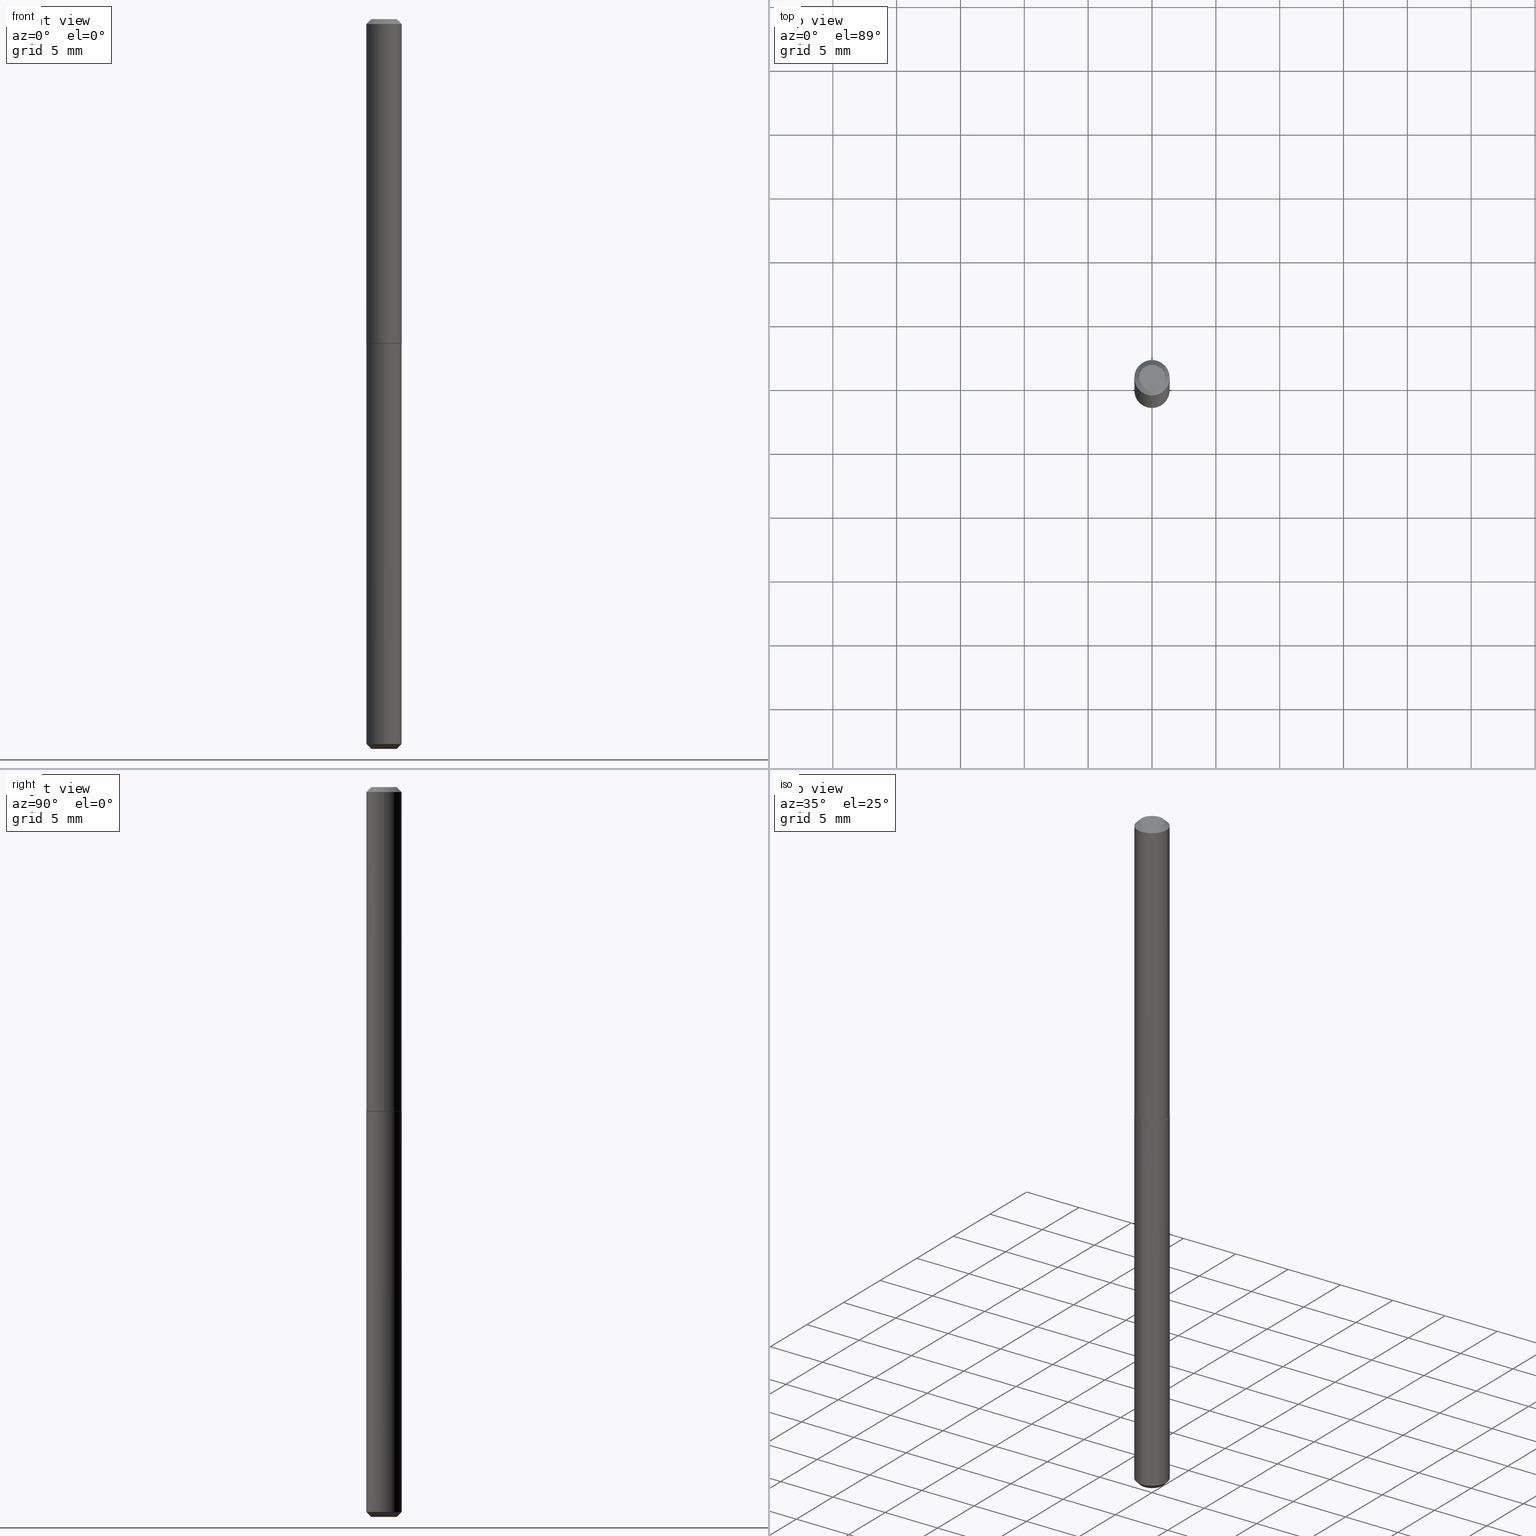
[diagram: canonical four-view strip — front | top / right | iso, engineering-drawing reading convention]
A machine part, canonical four-view strip (front | top / right | iso — engineering-drawing reading convention). The complete STEP part file that produces these views, byte-faithful:
ISO-10303-21;
HEADER;
FILE_DESCRIPTION (( 'STEP AP203' ),
    '1' );
FILE_NAME ('70007.STEP',
    '2024-04-19T13:35:06',
    ( '' ),
    ( '' ),
    'SwSTEP 2.0',
    'SolidWorks 2023',
    '' );
FILE_SCHEMA (( 'CONFIG_CONTROL_DESIGN' ));
ENDSEC;

DATA;
#1 = LINE ( 'NONE', #253, #172 ) ;
#2 = DIRECTION ( 'NONE',  ( -2.445620426770845950E-29, 3.491264209534702117E-15, 1.000000000000000000 ) ) ;
#3 = UNCERTAINTY_MEASURE_WITH_UNIT (LENGTH_MEASURE( 1.000000000000000082E-05 ), #237, 'distance_accuracy_value', 'NONE');
#4 = DIRECTION ( 'NONE',  ( 1.000000000000000000, -6.982962677686269866E-15, 0.000000000000000000 ) ) ;
#5 = MANIFOLD_SOLID_BREP ( 'Body-Move/Copy2[1]', #227 ) ;
#6 = CARTESIAN_POINT ( 'NONE',  ( 0.05420000000000026880, -3.869957915973742939E-15, -1.000000000000000000 ) ) ;
#7 = PLANE ( 'NONE',  #334 ) ;
#8 = CC_DESIGN_PERSON_AND_ORGANIZATION_ASSIGNMENT ( #57, #216, ( #10 ) ) ;
#9 = CARTESIAN_POINT ( 'NONE',  ( 0.000000000000000000, 0.000000000000000000, 0.000000000000000000 ) ) ;
#10 = PRODUCT_DEFINITION_FORMATION_WITH_SPECIFIED_SOURCE ( 'ANY', '', #404, .NOT_KNOWN. ) ;
#11 = DIRECTION ( 'NONE',  ( -2.445468806185136597E-29, 3.491481338843145583E-15, 1.000000000000000000 ) ) ;
#12 = ORIENTED_EDGE ( 'NONE', *, *, #146, .T. ) ;
#13 = CC_DESIGN_DATE_AND_TIME_ASSIGNMENT ( #409, #383, ( #203 ) ) ;
#14 = DIRECTION ( 'NONE',  ( -2.438088387897960049E-29, 3.491481338843145188E-15, 1.000000000000000000 ) ) ;
#15 = CARTESIAN_POINT ( 'NONE',  ( -3.819680584693835163E-16, -0.05470000000000771467, -2.234999999999999876 ) ) ;
#16 = CIRCLE ( 'NONE', #197, 0.05420000000000026880 ) ;
#17 = EDGE_CURVE ( 'NONE', #305, #117, #34, .T. ) ;
#18 = EDGE_CURVE ( 'NONE', #411, #371, #49, .T. ) ;
#19 = EDGE_CURVE ( 'NONE', #336, #119, #195, .T. ) ;
#20 = PERSON_AND_ORGANIZATION_ROLE ( 'design_owner' ) ;
#21 = ORIENTED_EDGE ( 'NONE', *, *, #398, .F. ) ;
#22 = VECTOR ( 'NONE', #109, 39.37007874015748143 ) ;
#23 = ORIENTED_EDGE ( 'NONE', *, *, #80, .F. ) ;
#24 = APPROVAL_PERSON_ORGANIZATION ( #25, #162, #277 ) ;
#25 = PERSON_AND_ORGANIZATION ( #35, #38 ) ;
#26 = ORIENTED_EDGE ( 'NONE', *, *, #31, .T. ) ;
#27 = APPROVAL_DATE_TIME ( #310, #162 ) ;
#28 = DATE_TIME_ROLE ( 'creation_date' ) ;
#29 = FACE_OUTER_BOUND ( 'NONE', #88, .T. ) ;
#30 = DIRECTION ( 'NONE',  ( -6.982962677686265922E-15, -1.000000000000000000, 4.994237648380736877E-15 ) ) ;
#31 = EDGE_CURVE ( 'NONE', #411, #275, #324, .T. ) ;
#32 = CARTESIAN_POINT ( 'NONE',  ( 2.445468806185136597E-29, -3.491481338843145583E-15, -1.000000000000000000 ) ) ;
#33 = ADVANCED_FACE ( 'NONE', ( #163 ), #321, .F. ) ;
#34 = LINE ( 'NONE', #220, #181 ) ;
#35 = PERSON ( 'UNSPECIFIED', 'UNSPECIFIED', 'UNSPECIFIED', ('UNSPECIFIED'), ('UNSPECIFIED'), ('UNSPECIFIED') ) ;
#36 = CARTESIAN_POINT ( 'NONE',  ( 2.445468806185136597E-29, -3.491481338843145583E-15, -1.000000000000000000 ) ) ;
#37 = VECTOR ( 'NONE', #2, 39.37007874015748143 ) ;
#38 = ORGANIZATION ( 'UNSPECIFIED', 'UNSPECIFIED', '' ) ;
#39 = EDGE_CURVE ( 'NONE', #305, #56, #207, .T. ) ;
#40 = CARTESIAN_POINT ( 'NONE',  ( -3.819680584693840587E-16, -0.05470000000000780488, -2.234999999999999876 ) ) ;
#41 = DIRECTION ( 'NONE',  ( -6.982962677686265922E-15, -1.000000000000000000, 2.497118824190368439E-15 ) ) ;
#42 = FACE_OUTER_BOUND ( 'NONE', #375, .T. ) ;
#43 = EDGE_LOOP ( 'NONE', ( #85, #211, #186, #179 ) ) ;
#44 = AXIS2_PLACEMENT_3D ( 'NONE', #124, #223, #65 ) ;
#45 = AXIS2_PLACEMENT_3D ( 'NONE', #291, #11, #201 ) ;
#46 = EDGE_CURVE ( 'NONE', #241, #139, #392, .T. ) ;
#47 = FACE_OUTER_BOUND ( 'NONE', #245, .T. ) ;
#48 = CARTESIAN_POINT ( 'NONE',  ( 7.017400510782214507E-30, -5.988600163033514416E-15, -1.000000000000000000 ) ) ;
#49 = CIRCLE ( 'NONE', #280, 0.03969999999999999918 ) ;
#50 = CONICAL_SURFACE ( 'NONE', #82, 0.05469999999999999862, 0.7853981633974450594 ) ;
#51 = ORIENTED_EDGE ( 'NONE', *, *, #18, .F. ) ;
#52 = CALENDAR_DATE ( 2024, 19, 4 ) ;
#53 = ORIENTED_EDGE ( 'NONE', *, *, #102, .T. ) ;
#54 = COORDINATED_UNIVERSAL_TIME_OFFSET ( 5, 0, .BEHIND. ) ;
#55 = EDGE_LOOP ( 'NONE', ( #144, #150 ) ) ;
#56 = VERTEX_POINT ( 'NONE', #6 ) ;
#57 = PERSON_AND_ORGANIZATION ( #35, #38 ) ;
#58 = SECURITY_CLASSIFICATION_LEVEL ( 'unclassified' ) ;
#59 = DIRECTION ( 'NONE',  ( -2.445620426770845950E-29, 3.491264209534702117E-15, 1.000000000000000000 ) ) ;
#60 = CARTESIAN_POINT ( 'NONE',  ( 3.886668764608293712E-16, 0.05469999999999219931, -2.235000000000000320 ) ) ;
#61 = CYLINDRICAL_SURFACE ( 'NONE', #315, 0.05469999999999999862 ) ;
#62 = CIRCLE ( 'NONE', #306, 0.03969999999999999918 ) ;
#63 = CARTESIAN_POINT ( 'NONE',  ( 3.353761712788221058E-16, 0.03969999999999214435, -2.250000000000000000 ) ) ;
#64 = DIRECTION ( 'NONE',  ( -6.982962677686266711E-15, -1.000000000000000000, 6.881229203184542474E-15 ) ) ;
#65 = DIRECTION ( 'NONE',  ( -1.000000000000000000, 6.982962677686265922E-15, -4.876176775795935793E-29 ) ) ;
#66 = FACE_OUTER_BOUND ( 'NONE', #247, .T. ) ;
#67 = ADVANCED_FACE ( 'NONE', ( #66 ), #366, .T. ) ;
#68 = CIRCLE ( 'NONE', #350, 0.05469999999999999862 ) ;
#69 = EDGE_CURVE ( 'NONE', #56, #305, #16, .T. ) ;
#70 = APPROVAL_PERSON_ORGANIZATION ( #338, #300, #378 ) ;
#71 = CARTESIAN_POINT ( 'NONE',  ( 3.668203209277728735E-31, -5.237222008264752911E-17, -0.01500000000000009832 ) ) ;
#72 = EDGE_LOOP ( 'NONE', ( #309, #377, #311, #268 ) ) ;
#73 = CARTESIAN_POINT ( 'NONE',  ( 2.445468806185136317E-29, -3.491481338843145188E-15, -0.9999999999999998890 ) ) ;
#74 = ADVANCED_FACE ( 'NONE', ( #128 ), #123, .F. ) ;
#75 = CARTESIAN_POINT ( 'NONE',  ( 2.445468806185136597E-29, -3.491481338843145583E-15, -1.000000000000000000 ) ) ;
#76 = AXIS2_PLACEMENT_3D ( 'NONE', #130, #133, #258 ) ;
#77 = FACE_OUTER_BOUND ( 'NONE', #72, .T. ) ;
#78 = DIRECTION ( 'NONE',  ( 6.982962677686265922E-15, 1.000000000000000000, -3.491264209534702117E-15 ) ) ;
#79 = CC_DESIGN_PERSON_AND_ORGANIZATION_ASSIGNMENT ( #153, #20, ( #404 ) ) ;
#80 = EDGE_CURVE ( 'NONE', #369, #119, #287, .T. ) ;
#81 = EDGE_LOOP ( 'NONE', ( #327, #180, #405, #341 ) ) ;
#82 = AXIS2_PLACEMENT_3D ( 'NONE', #71, #200, #257 ) ;
#83 = ORIENTED_EDGE ( 'NONE', *, *, #86, .F. ) ;
#84 = PERSON_AND_ORGANIZATION_ROLE ( 'creator' ) ;
#85 = ORIENTED_EDGE ( 'NONE', *, *, #233, .T. ) ;
#86 = EDGE_CURVE ( 'NONE', #368, #117, #343, .T. ) ;
#87 = CALENDAR_DATE ( 2024, 19, 4 ) ;
#88 = EDGE_LOOP ( 'NONE', ( #171, #12, #374, #100 ) ) ;
#89 = APPROVAL_STATUS ( 'not_yet_approved' ) ;
#90 = AXIS2_PLACEMENT_3D ( 'NONE', #93, #59, #252 ) ;
#91 = ORIENTED_EDGE ( 'NONE', *, *, #372, .T. ) ;
#92 = APPROVAL_DATE_TIME ( #185, #320 ) ;
#93 = CARTESIAN_POINT ( 'NONE',  ( 5.465810033247131570E-29, -7.803192637618503091E-15, -2.234999999999999876 ) ) ;
#94 = CARTESIAN_POINT ( 'NONE',  ( 0.05470000000000006107, -3.819680584694392296E-16, 2.667268696360380107E-30 ) ) ;
#95 = CARTESIAN_POINT ( 'NONE',  ( 0.05469999999999999862, -4.343402785520863089E-16, -0.01500000000000009832 ) ) ;
#96 = CARTESIAN_POINT ( 'NONE',  ( 5.465810033247131570E-29, -7.803192637618503091E-15, -2.234999999999999876 ) ) ;
#97 = AXIS2_PLACEMENT_3D ( 'NONE', #126, #103, #255 ) ;
#98 = FACE_OUTER_BOUND ( 'NONE', #81, .T. ) ;
#99 = LOCAL_TIME ( 9, 35, 6.000000000000000000, #54 ) ;
#100 = ORIENTED_EDGE ( 'NONE', *, *, #235, .F. ) ;
#101 = CARTESIAN_POINT ( 'NONE',  ( 2.444246071782043795E-29, -3.489735598173723685E-15, -0.9994999999999999440 ) ) ;
#102 = EDGE_CURVE ( 'NONE', #368, #369, #251, .T. ) ;
#103 = DIRECTION ( 'NONE',  ( -2.445468806185136597E-29, 3.491481338843145583E-15, 1.000000000000000000 ) ) ;
#104 = CARTESIAN_POINT ( 'NONE',  ( 5.465810033247131570E-29, -7.803192637618503091E-15, -2.234999999999999876 ) ) ;
#105 = VECTOR ( 'NONE', #312, 39.37007874015748143 ) ;
#106 = DIRECTION ( 'NONE',  ( 1.000000000000000000, -6.982962677686266711E-15, 4.876276690596463257E-29 ) ) ;
#107 = FACE_OUTER_BOUND ( 'NONE', #361, .T. ) ;
#108 = ADVANCED_FACE ( 'NONE', ( #29 ), #61, .T. ) ;
#109 = DIRECTION ( 'NONE',  ( -2.445620426770845950E-29, 3.491264209534702117E-15, 1.000000000000000000 ) ) ;
#110 = CYLINDRICAL_SURFACE ( 'NONE', #244, 0.05470000000000006107 ) ;
#111 = AXIS2_PLACEMENT_3D ( 'NONE', #240, #265, #169 ) ;
#112 = CARTESIAN_POINT ( 'NONE',  ( 3.886668764607991973E-16, 0.05469999999999650836, -1.000000000000000000 ) ) ;
#113 = EDGE_CURVE ( 'NONE', #117, #119, #256, .T. ) ;
#114 = ADVANCED_FACE ( 'NONE', ( #382 ), #393, .T. ) ;
#115 = ORIENTED_EDGE ( 'NONE', *, *, #19, .T. ) ;
#116 = EDGE_LOOP ( 'NONE', ( #270, #243, #26, #206 ) ) ;
#117 = VERTEX_POINT ( 'NONE', #218 ) ;
#118 = DATE_AND_TIME ( #178, #99 ) ;
#119 = VERTEX_POINT ( 'NONE', #317 ) ;
#120 = EDGE_LOOP ( 'NONE', ( #391, #91 ) ) ;
#121 = CALENDAR_DATE ( 2024, 19, 4 ) ;
#122 = DIRECTION ( 'NONE',  ( 0.000000000000000000, 0.000000000000000000, 1.000000000000000000 ) ) ;
#123 = PLANE ( 'NONE',  #202 ) ;
#124 = CARTESIAN_POINT ( 'NONE',  ( -8.685023083137044214E-48, 1.239991119310121970E-33, 3.551475717527323081E-19 ) ) ;
#125 = DIRECTION ( 'NONE',  ( -6.982962677686265922E-15, -1.000000000000000000, 3.491264209534702117E-15 ) ) ;
#126 = CARTESIAN_POINT ( 'NONE',  ( 2.444246071782043795E-29, -3.489735598173723685E-15, -0.9994999999999999440 ) ) ;
#127 = AXIS2_PLACEMENT_3D ( 'NONE', #349, #286, #279 ) ;
#128 = FACE_OUTER_BOUND ( 'NONE', #408, .T. ) ;
#129 = DIRECTION ( 'NONE',  ( 1.000000000000000000, -6.982962677686266711E-15, 4.876176775795936353E-29 ) ) ;
#130 = CARTESIAN_POINT ( 'NONE',  ( -1.737004616627408843E-47, 2.479982238620243940E-33, 7.102951435054646163E-19 ) ) ;
#131 = DIRECTION ( 'NONE',  ( 1.000000000000000000, -6.982962677686262766E-15, 0.000000000000000000 ) ) ;
#132 = AXIS2_PLACEMENT_3D ( 'NONE', #32, #283, #285 ) ;
#133 = DIRECTION ( 'NONE',  ( -2.445468806185136597E-29, 3.491481338843145583E-15, 1.000000000000000000 ) ) ;
#134 = ORIENTED_EDGE ( 'NONE', *, *, #69, .F. ) ;
#135 = CIRCLE ( 'NONE', #301, 0.05469999999999999862 ) ;
#136 = LOCAL_TIME ( 9, 35, 6.000000000000000000, #155 ) ;
#137 =( LENGTH_UNIT ( ) NAMED_UNIT ( * ) SI_UNIT ( $, .METRE. ) );
#138 = DIRECTION ( 'NONE',  ( -6.982962677686265922E-15, -1.000000000000000000, 2.497118824190368439E-15 ) ) ;
#139 = VERTEX_POINT ( 'NONE', #160 ) ;
#140 = CARTESIAN_POINT ( 'NONE',  ( 5.502494339648693123E-29, -7.855561600761522045E-15, -2.249999999999999556 ) ) ;
#141 = CARTESIAN_POINT ( 'NONE',  ( 0.000000000000000000, 0.000000000000000000, 0.000000000000000000 ) ) ;
#142 = CC_DESIGN_PERSON_AND_ORGANIZATION_ASSIGNMENT ( #278, #149, ( #203 ) ) ;
#143 = EDGE_CURVE ( 'NONE', #208, #369, #1, .T. ) ;
#144 = ORIENTED_EDGE ( 'NONE', *, *, #46, .T. ) ;
#145 = COORDINATED_UNIVERSAL_TIME_OFFSET ( 5, 0, .BEHIND. ) ;
#146 = EDGE_CURVE ( 'NONE', #335, #275, #249, .T. ) ;
#147 = EDGE_LOOP ( 'NONE', ( #339, #177, #53, #230 ) ) ;
#148 = VECTOR ( 'NONE', #196, 39.37007874015748143 ) ;
#149 = PERSON_AND_ORGANIZATION_ROLE ( 'classification_officer' ) ;
#150 = ORIENTED_EDGE ( 'NONE', *, *, #235, .T. ) ;
#151 = APPROVAL_STATUS ( 'not_yet_approved' ) ;
#152 = ORIENTED_EDGE ( 'NONE', *, *, #242, .F. ) ;
#153 = PERSON_AND_ORGANIZATION ( #35, #38 ) ;
#154 = EDGE_CURVE ( 'NONE', #371, #411, #323, .T. ) ;
#155 = COORDINATED_UNIVERSAL_TIME_OFFSET ( 5, 0, .BEHIND. ) ;
#156 = AXIS2_PLACEMENT_3D ( 'NONE', #96, #204, #394 ) ;
#157 = CARTESIAN_POINT ( 'NONE',  ( 2.445468806185136317E-29, -3.491481338843145188E-15, -0.9999999999999998890 ) ) ;
#158 = LINE ( 'NONE', #60, #296 ) ;
#159 = CARTESIAN_POINT ( 'NONE',  ( -3.819680584694142819E-16, -0.05470000000000348889, -0.9999999999999996669 ) ) ;
#160 = CARTESIAN_POINT ( 'NONE',  ( 3.886668764608296177E-16, 0.05469999999999650836, -1.000000000000000222 ) ) ;
#161 = EDGE_CURVE ( 'NONE', #119, #369, #400, .T. ) ;
#162 = APPROVAL ( #151, 'UNSPECIFIED' ) ;
#163 = FACE_OUTER_BOUND ( 'NONE', #120, .T. ) ;
#164 = DIRECTION ( 'NONE',  ( -2.445468806185136597E-29, 3.491481338843145583E-15, 1.000000000000000000 ) ) ;
#165 = AXIS2_PLACEMENT_3D ( 'NONE', #141, #295, #129 ) ;
#166 = CC_DESIGN_APPROVAL ( #162, ( #203 ) ) ;
#167 =( NAMED_UNIT ( * ) SI_UNIT ( $, .STERADIAN. ) SOLID_ANGLE_UNIT ( ) );
#168 = LINE ( 'NONE', #276, #260 ) ;
#169 = DIRECTION ( 'NONE',  ( -1.000000000000000000, 6.982962677686266711E-15, 0.000000000000000000 ) ) ;
#170 = DIRECTION ( 'NONE',  ( -2.445468806185136597E-29, 3.491481338843145583E-15, 1.000000000000000000 ) ) ;
#171 = ORIENTED_EDGE ( 'NONE', *, *, #228, .F. ) ;
#172 = VECTOR ( 'NONE', #386, 39.37007874015748143 ) ;
#173 = CC_DESIGN_APPROVAL ( #320, ( #10 ) ) ;
#174 = DIRECTION ( 'NONE',  ( -2.445468806185136597E-29, 3.491481338843145583E-15, 1.000000000000000000 ) ) ;
#175 = CYLINDRICAL_SURFACE ( 'NONE', #165, 0.05470000000000006107 ) ;
#176 = AXIS2_PLACEMENT_3D ( 'NONE', #261, #395, #131 ) ;
#177 = ORIENTED_EDGE ( 'NONE', *, *, #242, .T. ) ;
#178 = CALENDAR_DATE ( 2024, 19, 4 ) ;
#179 = ORIENTED_EDGE ( 'NONE', *, *, #348, .F. ) ;
#180 = ORIENTED_EDGE ( 'NONE', *, *, #354, .T. ) ;
#181 = VECTOR ( 'NONE', #194, 39.37007874015748143 ) ;
#182 = CIRCLE ( 'NONE', #76, 0.03969999999999999918 ) ;
#183 = COORDINATED_UNIVERSAL_TIME_OFFSET ( 5, 0, .BEHIND. ) ;
#184 = ORIENTED_EDGE ( 'NONE', *, *, #161, .T. ) ;
#185 = DATE_AND_TIME ( #121, #222 ) ;
#186 = ORIENTED_EDGE ( 'NONE', *, *, #46, .F. ) ;
#187 = ADVANCED_FACE ( 'NONE', ( #77 ), #50, .T. ) ;
#188 = LINE ( 'NONE', #159, #37 ) ;
#189 = DIRECTION ( 'NONE',  ( -2.445620426770845950E-29, 3.491264209534702117E-15, 1.000000000000000000 ) ) ;
#190 = DIRECTION ( 'NONE',  ( 5.024295867788112088E-15, 0.7071067811865570096, 0.7071067811865380248 ) ) ;
#191 = DIRECTION ( 'NONE',  ( 0.7071067811864147901, -2.468850131080866299E-15, 0.7071067811866802444 ) ) ;
#192 = CONICAL_SURFACE ( 'NONE', #407, 0.05470000000000011658, 0.7853981633972606513 ) ;
#193 = DIRECTION ( 'NONE',  ( -2.445468806185136597E-29, 3.491481338843145583E-15, 1.000000000000000000 ) ) ;
#194 = DIRECTION ( 'NONE',  ( -0.7071067811864147901, 7.493145998869874533E-15, 0.7071067811866802444 ) ) ;
#195 = LINE ( 'NONE', #319, #105 ) ;
#196 = DIRECTION ( 'NONE',  ( -2.445468806185136877E-29, 3.491481338843145188E-15, 1.000000000000000000 ) ) ;
#197 = AXIS2_PLACEMENT_3D ( 'NONE', #36, #193, #4 ) ;
#198 = PRODUCT_RELATED_PRODUCT_CATEGORY ( 'detail', '', ( #404 ) ) ;
#199 = CARTESIAN_POINT ( 'NONE',  ( 2.444246071782043795E-29, -3.489735598173723685E-15, -0.9994999999999999440 ) ) ;
#200 = DIRECTION ( 'NONE',  ( 2.445468806185136597E-29, -3.491481338843145583E-15, -1.000000000000000000 ) ) ;
#201 = DIRECTION ( 'NONE',  ( 1.000000000000000000, -6.982962677686266711E-15, 0.000000000000000000 ) ) ;
#202 = AXIS2_PLACEMENT_3D ( 'NONE', #217, #414, #125 ) ;
#203 = SECURITY_CLASSIFICATION ( '', '', #58 ) ;
#204 = DIRECTION ( 'NONE',  ( -2.445620426770845950E-29, 3.491264209534702117E-15, 1.000000000000000000 ) ) ;
#205 = CARTESIAN_POINT ( 'NONE',  ( 3.886668764608300122E-16, 0.05469999999999228257, -2.235000000000000320 ) ) ;
#206 = ORIENTED_EDGE ( 'NONE', *, *, #146, .F. ) ;
#207 = CIRCLE ( 'NONE', #132, 0.05420000000000026880 ) ;
#208 = VERTEX_POINT ( 'NONE', #364 ) ;
#209 = CARTESIAN_POINT ( 'NONE',  ( 0.000000000000000000, 0.000000000000000000, 0.000000000000000000 ) ) ;
#210 = ORIENTED_EDGE ( 'NONE', *, *, #154, .F. ) ;
#211 = ORIENTED_EDGE ( 'NONE', *, *, #228, .T. ) ;
#212 = AXIS2_PLACEMENT_3D ( 'NONE', #48, #299, #78 ) ;
#213 = CALENDAR_DATE ( 2024, 19, 4 ) ;
#214 = ADVANCED_FACE ( 'NONE', ( #399 ), #175, .T. ) ;
#215 = ORIENTED_EDGE ( 'NONE', *, *, #69, .T. ) ;
#216 = PERSON_AND_ORGANIZATION_ROLE ( 'creator' ) ;
#217 = CARTESIAN_POINT ( 'NONE',  ( 5.502304813916557343E-29, -7.855833012397078448E-15, -2.250000000000000000 ) ) ;
#218 = CARTESIAN_POINT ( 'NONE',  ( -0.05470000000000011658, -3.101068721712948301E-15, -0.9994999999999999440 ) ) ;
#219 = CONICAL_SURFACE ( 'NONE', #254, 0.05469999999999999862, 0.7853981633974582710 ) ;
#220 = CARTESIAN_POINT ( 'NONE',  ( -0.05470000000000011658, -3.101068721712948301E-15, -0.9994999999999999440 ) ) ;
#221 = CC_DESIGN_PERSON_AND_ORGANIZATION_ASSIGNMENT ( #412, #84, ( #362 ) ) ;
#222 = LOCAL_TIME ( 9, 35, 6.000000000000000000, #183 ) ;
#223 = DIRECTION ( 'NONE',  ( 2.438088387897960049E-29, -3.491481338843145188E-15, -1.000000000000000000 ) ) ;
#224 = DESIGN_CONTEXT ( 'detailed design', #401, 'design' ) ;
#225 = CARTESIAN_POINT ( 'NONE',  ( 3.668203209277728735E-31, -5.237222008264752911E-17, -0.01500000000000009832 ) ) ;
#226 = CARTESIAN_POINT ( 'NONE',  ( 6.856539924517771713E-30, -6.011636314548179003E-15, -0.9999999999999998890 ) ) ;
#227 = CLOSED_SHELL ( 'NONE', ( #293, #360, #114, #108, #322, #74 ) ) ;
#228 = EDGE_CURVE ( 'NONE', #335, #139, #390, .T. ) ;
#229 = AXIS2_PLACEMENT_3D ( 'NONE', #73, #325, #41 ) ;
#230 = ORIENTED_EDGE ( 'NONE', *, *, #161, .F. ) ;
#231 = FACE_OUTER_BOUND ( 'NONE', #43, .T. ) ;
#232 = DIRECTION ( 'NONE',  ( -2.445620426770845950E-29, 3.491264209534702117E-15, 1.000000000000000000 ) ) ;
#233 = EDGE_CURVE ( 'NONE', #275, #335, #68, .T. ) ;
#234 = DIRECTION ( 'NONE',  ( -2.445468806185136597E-29, 3.491481338843145583E-15, 1.000000000000000000 ) ) ;
#235 = EDGE_CURVE ( 'NONE', #139, #241, #135, .T. ) ;
#236 = CARTESIAN_POINT ( 'NONE',  ( -0.05420000000000026880, -3.103717948887058713E-15, -1.000000000000000000 ) ) ;
#237 =( CONVERSION_BASED_UNIT ( 'INCH', #333 ) LENGTH_UNIT ( ) NAMED_UNIT ( #356 ) );
#238 =( GEOMETRIC_REPRESENTATION_CONTEXT ( 3 ) GLOBAL_UNCERTAINTY_ASSIGNED_CONTEXT ( ( #3 ) ) GLOBAL_UNIT_ASSIGNED_CONTEXT ( ( #237, #402, #167 ) ) REPRESENTATION_CONTEXT ( 'NONE', 'WORKASPACE' ) );
#239 = ORIENTED_EDGE ( 'NONE', *, *, #17, .F. ) ;
#240 = CARTESIAN_POINT ( 'NONE',  ( 3.668203209277728735E-31, -5.237222008264752911E-17, -0.01500000000000009832 ) ) ;
#241 = VERTEX_POINT ( 'NONE', #328 ) ;
#242 = EDGE_CURVE ( 'NONE', #117, #368, #415, .T. ) ;
#243 = ORIENTED_EDGE ( 'NONE', *, *, #154, .T. ) ;
#244 = AXIS2_PLACEMENT_3D ( 'NONE', #9, #170, #396 ) ;
#245 = EDGE_LOOP ( 'NONE', ( #134, #271 ) ) ;
#246 = MECHANICAL_CONTEXT ( 'NONE', #318, 'mechanical' ) ;
#247 = EDGE_LOOP ( 'NONE', ( #239, #345, #379, #152 ) ) ;
#248 = PERSON_AND_ORGANIZATION ( #35, #38 ) ;
#249 = CIRCLE ( 'NONE', #156, 0.05469999999999999862 ) ;
#250 = DIRECTION ( 'NONE',  ( 1.000000000000000000, 0.000000000000000000, 0.000000000000000000 ) ) ;
#251 = LINE ( 'NONE', #94, #266 ) ;
#252 = DIRECTION ( 'NONE',  ( -6.982962677686265922E-15, -1.000000000000000000, 4.994237648380736877E-15 ) ) ;
#253 = CARTESIAN_POINT ( 'NONE',  ( 0.05469999999999999862, -4.276414605607502536E-16, -0.01500000000000009832 ) ) ;
#254 = AXIS2_PLACEMENT_3D ( 'NONE', #313, #353, #30 ) ;
#255 = DIRECTION ( 'NONE',  ( 1.000000000000000000, -6.982962677686262766E-15, 0.000000000000000000 ) ) ;
#256 = LINE ( 'NONE', #357, #148 ) ;
#257 = DIRECTION ( 'NONE',  ( -1.000000000000000000, 6.982962677686266711E-15, 0.000000000000000000 ) ) ;
#258 = DIRECTION ( 'NONE',  ( 1.000000000000000000, -6.982962677686266711E-15, 4.876276690596463257E-29 ) ) ;
#259 = DIRECTION ( 'NONE',  ( 1.000000000000000000, -6.982962677686262766E-15, 0.000000000000000000 ) ) ;
#260 = VECTOR ( 'NONE', #191, 39.37007874015748143 ) ;
#261 = CARTESIAN_POINT ( 'NONE',  ( 2.444246071782043795E-29, -3.489735598173723685E-15, -0.9994999999999999440 ) ) ;
#262 = ORIENTED_EDGE ( 'NONE', *, *, #113, .T. ) ;
#263 = FACE_OUTER_BOUND ( 'NONE', #274, .T. ) ;
#264 = CARTESIAN_POINT ( 'NONE',  ( -1.737004616627408843E-47, 2.479982238620243940E-33, 7.102951435054646163E-19 ) ) ;
#265 = DIRECTION ( 'NONE',  ( 2.445468806185136597E-29, -3.491481338843145583E-15, -1.000000000000000000 ) ) ;
#266 = VECTOR ( 'NONE', #347, 39.37007874015748143 ) ;
#267 = PRODUCT_DEFINITION_SHAPE ( 'NONE', 'NONE',  #362 ) ;
#268 = ORIENTED_EDGE ( 'NONE', *, *, #19, .F. ) ;
#269 = ADVANCED_FACE ( 'NONE', ( #47 ), #7, .F. ) ;
#270 = ORIENTED_EDGE ( 'NONE', *, *, #354, .F. ) ;
#271 = ORIENTED_EDGE ( 'NONE', *, *, #39, .F. ) ;
#272 = MANIFOLD_SOLID_BREP ( 'Body-Move/Copy2[2]', #314 ) ;
#273 = APPROVAL_DATE_TIME ( #118, #300 ) ;
#274 = EDGE_LOOP ( 'NONE', ( #215, #387, #83, #403 ) ) ;
#275 = VERTEX_POINT ( 'NONE', #15 ) ;
#276 = CARTESIAN_POINT ( 'NONE',  ( 0.05470000000000011658, -3.871703656643162865E-15, -0.9994999999999999440 ) ) ;
#277 = APPROVAL_ROLE ( '' ) ;
#278 = PERSON_AND_ORGANIZATION ( #35, #38 ) ;
#279 = DIRECTION ( 'NONE',  ( -6.982962677686265922E-15, -1.000000000000000000, 2.497118824190368439E-15 ) ) ;
#280 = AXIS2_PLACEMENT_3D ( 'NONE', #389, #352, #64 ) ;
#281 = CONICAL_SURFACE ( 'NONE', #111, 0.05469999999999999862, 0.7853981633974450594 ) ;
#282 = ADVANCED_FACE ( 'NONE', ( #263 ), #192, .T. ) ;
#283 = DIRECTION ( 'NONE',  ( -2.445468806185136597E-29, 3.491481338843145583E-15, 1.000000000000000000 ) ) ;
#284 = CC_DESIGN_PERSON_AND_ORGANIZATION_ASSIGNMENT ( #248, #376, ( #10 ) ) ;
#285 = DIRECTION ( 'NONE',  ( 1.000000000000000000, -6.982962677686269866E-15, 0.000000000000000000 ) ) ;
#286 = DIRECTION ( 'NONE',  ( -2.445620426770845950E-29, 3.491264209534702117E-15, 1.000000000000000000 ) ) ;
#287 = CIRCLE ( 'NONE', #329, 0.05469999999999999862 ) ;
#288 = CC_DESIGN_DATE_AND_TIME_ASSIGNMENT ( #308, #28, ( #362 ) ) ;
#289 = DIRECTION ( 'NONE',  ( 1.000000000000000000, -6.982962677686262766E-15, 0.000000000000000000 ) ) ;
#290 = LOCAL_TIME ( 9, 35, 6.000000000000000000, #344 ) ;
#291 = CARTESIAN_POINT ( 'NONE',  ( 3.668203209277728735E-31, -5.237222008264752911E-17, -0.01500000000000009832 ) ) ;
#292 = CYLINDRICAL_SURFACE ( 'NONE', #229, 0.05469999999999999862 ) ;
#293 = ADVANCED_FACE ( 'NONE', ( #231 ), #292, .T. ) ;
#294 = ADVANCED_FACE ( 'NONE', ( #42 ), #281, .T. ) ;
#295 = DIRECTION ( 'NONE',  ( -2.445468806185136597E-29, 3.491481338843145583E-15, 1.000000000000000000 ) ) ;
#296 = VECTOR ( 'NONE', #190, 39.37007874015748143 ) ;
#297 = DIRECTION ( 'NONE',  ( -2.445620426770845950E-29, 3.491264209534702117E-15, 1.000000000000000000 ) ) ;
#298 = ADVANCED_BREP_SHAPE_REPRESENTATION ( '70007', ( #5, #272, #351 ), #238 ) ;
#299 = DIRECTION ( 'NONE',  ( 2.445620426770845669E-29, -3.491264209534702117E-15, -1.000000000000000000 ) ) ;
#300 = APPROVAL ( #89, 'UNSPECIFIED' ) ;
#301 = AXIS2_PLACEMENT_3D ( 'NONE', #75, #297, #138 ) ;
#302 = ADVANCED_FACE ( 'NONE', ( #107 ), #110, .T. ) ;
#303 = ORIENTED_EDGE ( 'NONE', *, *, #102, .F. ) ;
#304 = APPROVAL_ROLE ( '' ) ;
#305 = VERTEX_POINT ( 'NONE', #236 ) ;
#306 = AXIS2_PLACEMENT_3D ( 'NONE', #264, #234, #106 ) ;
#307 = LOCAL_TIME ( 9, 35, 6.000000000000000000, #145 ) ;
#308 = DATE_AND_TIME ( #87, #290 ) ;
#309 = ORIENTED_EDGE ( 'NONE', *, *, #372, .F. ) ;
#310 = DATE_AND_TIME ( #213, #307 ) ;
#311 = ORIENTED_EDGE ( 'NONE', *, *, #80, .T. ) ;
#312 = DIRECTION ( 'NONE',  ( -0.7071067811865452413, 2.468850131082233000E-15, -0.7071067811865497932 ) ) ;
#313 = CARTESIAN_POINT ( 'NONE',  ( 5.465810033247131570E-29, -7.803192637618503091E-15, -2.234999999999999876 ) ) ;
#314 = CLOSED_SHELL ( 'NONE', ( #187, #302, #282, #269, #67, #214, #294, #33 ) ) ;
#315 = AXIS2_PLACEMENT_3D ( 'NONE', #157, #189, #416 ) ;
#316 = CC_DESIGN_SECURITY_CLASSIFICATION ( #203, ( #10 ) ) ;
#317 = CARTESIAN_POINT ( 'NONE',  ( -0.05469999999999999862, -1.382387032667409604E-15, -0.01500000000000009832 ) ) ;
#318 = APPLICATION_CONTEXT ( 'configuration controlled 3d designs of mechanical parts and assemblies' ) ;
#319 = CARTESIAN_POINT ( 'NONE',  ( -0.05469999999999999862, 3.295958383867913123E-16, -0.01500000000000009832 ) ) ;
#320 = APPROVAL ( #381, 'UNSPECIFIED' ) ;
#321 = PLANE ( 'NONE',  #44 ) ;
#322 = ADVANCED_FACE ( 'NONE', ( #367 ), #365, .F. ) ;
#323 = CIRCLE ( 'NONE', #380, 0.03969999999999999918 ) ;
#324 = LINE ( 'NONE', #40, #406 ) ;
#325 = DIRECTION ( 'NONE',  ( -2.445620426770845950E-29, 3.491264209534702117E-15, 1.000000000000000000 ) ) ;
#326 = DIRECTION ( 'NONE',  ( -6.982962677686265922E-15, -1.000000000000000000, 4.994237648380736877E-15 ) ) ;
#327 = ORIENTED_EDGE ( 'NONE', *, *, #18, .T. ) ;
#328 = CARTESIAN_POINT ( 'NONE',  ( -3.819680584694142819E-16, -0.05470000000000348889, -0.9999999999999998890 ) ) ;
#329 = AXIS2_PLACEMENT_3D ( 'NONE', #225, #164, #388 ) ;
#330 = DIRECTION ( 'NONE',  ( -2.445620426770845950E-29, 3.491264209534702117E-15, 1.000000000000000000 ) ) ;
#331 = APPLICATION_PROTOCOL_DEFINITION ( 'international standard', 'config_control_design', 1994, #318 ) ;
#332 = CARTESIAN_POINT ( 'NONE',  ( -0.03969999999999999918, 3.034097283454680192E-16, 7.102951435034343972E-19 ) ) ;
#333 = LENGTH_MEASURE_WITH_UNIT ( LENGTH_MEASURE( 0.02539999999999999897 ), #137 );
#334 = AXIS2_PLACEMENT_3D ( 'NONE', #226, #14, #359 ) ;
#335 = VERTEX_POINT ( 'NONE', #205 ) ;
#336 = VERTEX_POINT ( 'NONE', #332 ) ;
#337 = EDGE_CURVE ( 'NONE', #56, #368, #168, .T. ) ;
#338 = PERSON_AND_ORGANIZATION ( #35, #38 ) ;
#339 = ORIENTED_EDGE ( 'NONE', *, *, #113, .F. ) ;
#340 = PERSON_AND_ORGANIZATION ( #35, #38 ) ;
#341 = ORIENTED_EDGE ( 'NONE', *, *, #31, .F. ) ;
#342 = ORIENTED_EDGE ( 'NONE', *, *, #143, .F. ) ;
#343 = CIRCLE ( 'NONE', #370, 0.05470000000000011658 ) ;
#344 = COORDINATED_UNIVERSAL_TIME_OFFSET ( 5, 0, .BEHIND. ) ;
#345 = ORIENTED_EDGE ( 'NONE', *, *, #39, .T. ) ;
#346 = APPLICATION_PROTOCOL_DEFINITION ( 'international standard', 'config_control_design', 1994, #401 ) ;
#347 = DIRECTION ( 'NONE',  ( -2.445468806185136877E-29, 3.491481338843145188E-15, 1.000000000000000000 ) ) ;
#348 = EDGE_CURVE ( 'NONE', #275, #241, #188, .T. ) ;
#349 = CARTESIAN_POINT ( 'NONE',  ( 2.445468806185136597E-29, -3.491481338843145583E-15, -1.000000000000000000 ) ) ;
#350 = AXIS2_PLACEMENT_3D ( 'NONE', #104, #232, #326 ) ;
#351 = AXIS2_PLACEMENT_3D ( 'NONE', #209, #122, #250 ) ;
#352 = DIRECTION ( 'NONE',  ( -2.445620426770845950E-29, 3.491264209534702117E-15, 1.000000000000000000 ) ) ;
#353 = DIRECTION ( 'NONE',  ( -2.445620426770845950E-29, 3.491264209534702117E-15, 1.000000000000000000 ) ) ;
#354 = EDGE_CURVE ( 'NONE', #371, #335, #158, .T. ) ;
#355 = DIRECTION ( 'NONE',  ( -4.937700262164596952E-15, -0.7071067811865521247, 0.7071067811865429098 ) ) ;
#356 = DIMENSIONAL_EXPONENTS ( 1.000000000000000000, 0.000000000000000000, 0.000000000000000000, 0.000000000000000000, 0.000000000000000000, 0.000000000000000000, 0.000000000000000000 ) ;
#357 = CARTESIAN_POINT ( 'NONE',  ( -0.05470000000000006107, 3.886668764607752356E-16, -2.690657494369436160E-30 ) ) ;
#358 = APPROVAL_PERSON_ORGANIZATION ( #340, #320, #304 ) ;
#359 = DIRECTION ( 'NONE',  ( 1.000000000000000000, -6.982962677686265922E-15, 4.876176775795935793E-29 ) ) ;
#360 = ADVANCED_FACE ( 'NONE', ( #98 ), #219, .T. ) ;
#361 = EDGE_LOOP ( 'NONE', ( #410, #262, #23, #303 ) ) ;
#362 = PRODUCT_DEFINITION ( 'UNKNOWN', '', #10, #224 ) ;
#363 = DIRECTION ( 'NONE',  ( -6.982962677686266711E-15, -1.000000000000000000, 6.881229203184542474E-15 ) ) ;
#364 = CARTESIAN_POINT ( 'NONE',  ( 0.03969999999999999918, -3.500016155361400675E-16, 7.102951435076574801E-19 ) ) ;
#365 = PLANE ( 'NONE',  #212 ) ;
#366 = CONICAL_SURFACE ( 'NONE', #97, 0.05470000000000011658, 0.7853981633972606513 ) ;
#367 = FACE_OUTER_BOUND ( 'NONE', #55, .T. ) ;
#368 = VERTEX_POINT ( 'NONE', #385 ) ;
#369 = VERTEX_POINT ( 'NONE', #95 ) ;
#370 = AXIS2_PLACEMENT_3D ( 'NONE', #101, #384, #289 ) ;
#371 = VERTEX_POINT ( 'NONE', #63 ) ;
#372 = EDGE_CURVE ( 'NONE', #208, #336, #182, .T. ) ;
#373 = CC_DESIGN_APPROVAL ( #300, ( #362 ) ) ;
#374 = ORIENTED_EDGE ( 'NONE', *, *, #348, .T. ) ;
#375 = EDGE_LOOP ( 'NONE', ( #342, #21, #115, #184 ) ) ;
#376 = PERSON_AND_ORGANIZATION_ROLE ( 'design_supplier' ) ;
#377 = ORIENTED_EDGE ( 'NONE', *, *, #143, .T. ) ;
#378 = APPROVAL_ROLE ( '' ) ;
#379 = ORIENTED_EDGE ( 'NONE', *, *, #337, .T. ) ;
#380 = AXIS2_PLACEMENT_3D ( 'NONE', #140, #330, #363 ) ;
#381 = APPROVAL_STATUS ( 'not_yet_approved' ) ;
#382 = FACE_OUTER_BOUND ( 'NONE', #116, .T. ) ;
#383 = DATE_TIME_ROLE ( 'classification_date' ) ;
#384 = DIRECTION ( 'NONE',  ( -2.445468806185136597E-29, 3.491481338843145583E-15, 1.000000000000000000 ) ) ;
#385 = CARTESIAN_POINT ( 'NONE',  ( 0.05470000000000011658, -3.871703656643162865E-15, -0.9994999999999999440 ) ) ;
#386 = DIRECTION ( 'NONE',  ( 0.7071067811865452413, -7.319954787623248157E-15, -0.7071067811865497932 ) ) ;
#387 = ORIENTED_EDGE ( 'NONE', *, *, #17, .T. ) ;
#388 = DIRECTION ( 'NONE',  ( 1.000000000000000000, -6.982962677686266711E-15, 0.000000000000000000 ) ) ;
#389 = CARTESIAN_POINT ( 'NONE',  ( 5.502494339648693123E-29, -7.855561600761522045E-15, -2.249999999999999556 ) ) ;
#390 = LINE ( 'NONE', #112, #22 ) ;
#391 = ORIENTED_EDGE ( 'NONE', *, *, #398, .T. ) ;
#392 = CIRCLE ( 'NONE', #127, 0.05469999999999999862 ) ;
#393 = CONICAL_SURFACE ( 'NONE', #90, 0.05469999999999999862, 0.7853981633974582710 ) ;
#394 = DIRECTION ( 'NONE',  ( -6.982962677686265922E-15, -1.000000000000000000, 4.994237648380736877E-15 ) ) ;
#395 = DIRECTION ( 'NONE',  ( -2.445468806185136597E-29, 3.491481338843145583E-15, 1.000000000000000000 ) ) ;
#396 = DIRECTION ( 'NONE',  ( 1.000000000000000000, -6.982962677686266711E-15, 4.876176775795936353E-29 ) ) ;
#397 = CARTESIAN_POINT ( 'NONE',  ( -2.772236183040897523E-16, -0.03970000000000785401, -2.249999999999999556 ) ) ;
#398 = EDGE_CURVE ( 'NONE', #336, #208, #62, .T. ) ;
#399 = FACE_OUTER_BOUND ( 'NONE', #147, .T. ) ;
#400 = CIRCLE ( 'NONE', #45, 0.05469999999999999862 ) ;
#401 = APPLICATION_CONTEXT ( 'configuration controlled 3d designs of mechanical parts and assemblies' ) ;
#402 =( NAMED_UNIT ( * ) PLANE_ANGLE_UNIT ( ) SI_UNIT ( $, .RADIAN. ) );
#403 = ORIENTED_EDGE ( 'NONE', *, *, #337, .F. ) ;
#404 = PRODUCT ( '70007', '70007', '', ( #246 ) ) ;
#405 = ORIENTED_EDGE ( 'NONE', *, *, #233, .F. ) ;
#406 = VECTOR ( 'NONE', #355, 39.37007874015748143 ) ;
#407 = AXIS2_PLACEMENT_3D ( 'NONE', #199, #174, #259 ) ;
#408 = EDGE_LOOP ( 'NONE', ( #51, #210 ) ) ;
#409 = DATE_AND_TIME ( #52, #136 ) ;
#410 = ORIENTED_EDGE ( 'NONE', *, *, #86, .T. ) ;
#411 = VERTEX_POINT ( 'NONE', #397 ) ;
#412 = PERSON_AND_ORGANIZATION ( #35, #38 ) ;
#413 = SHAPE_DEFINITION_REPRESENTATION ( #267, #298 ) ;
#414 = DIRECTION ( 'NONE',  ( -2.445620426770845669E-29, 3.491264209534702117E-15, 1.000000000000000000 ) ) ;
#415 = CIRCLE ( 'NONE', #176, 0.05470000000000011658 ) ;
#416 = DIRECTION ( 'NONE',  ( -6.982962677686265922E-15, -1.000000000000000000, 2.497118824190368439E-15 ) ) ;
ENDSEC;
END-ISO-10303-21;
